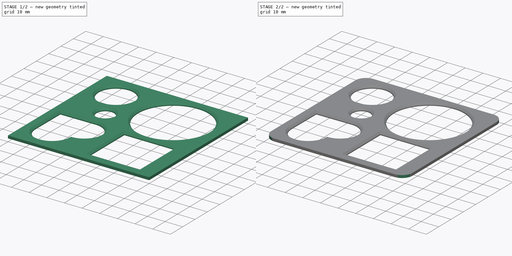
[diagram: build sequence overview — one tinted view per stage of 2, left to right]
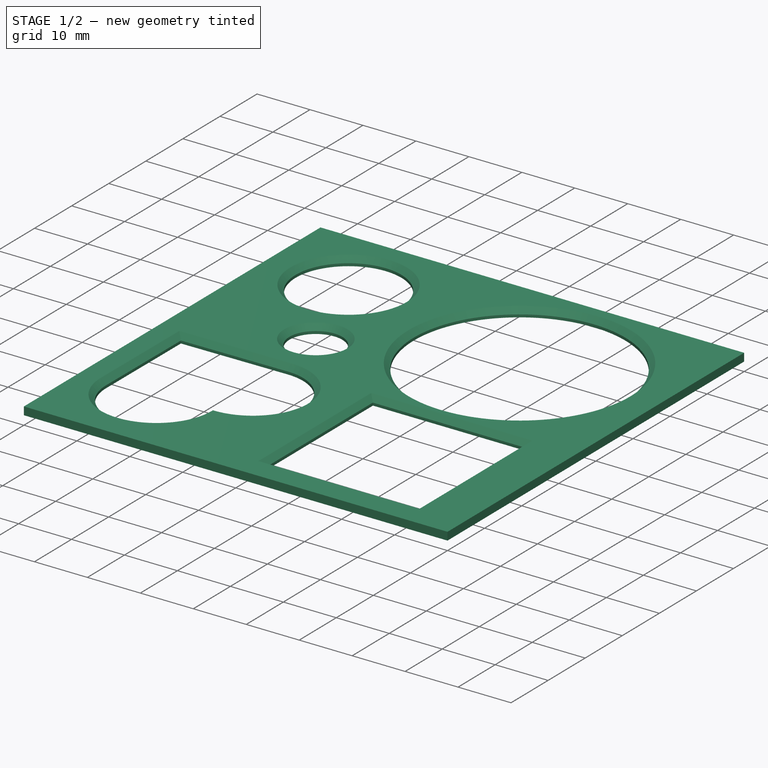
[diagram: stage 1 of 2 — iso view after this stage's code; geometry added in this stage tinted green]
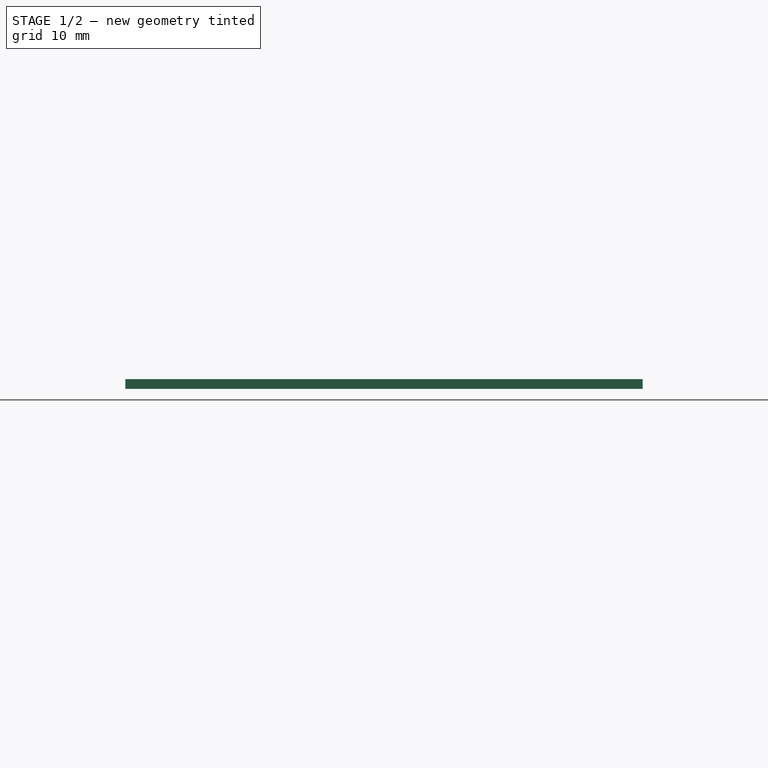
[diagram: stage 1 of 2 — front view after this stage's code; geometry added in this stage tinted green]
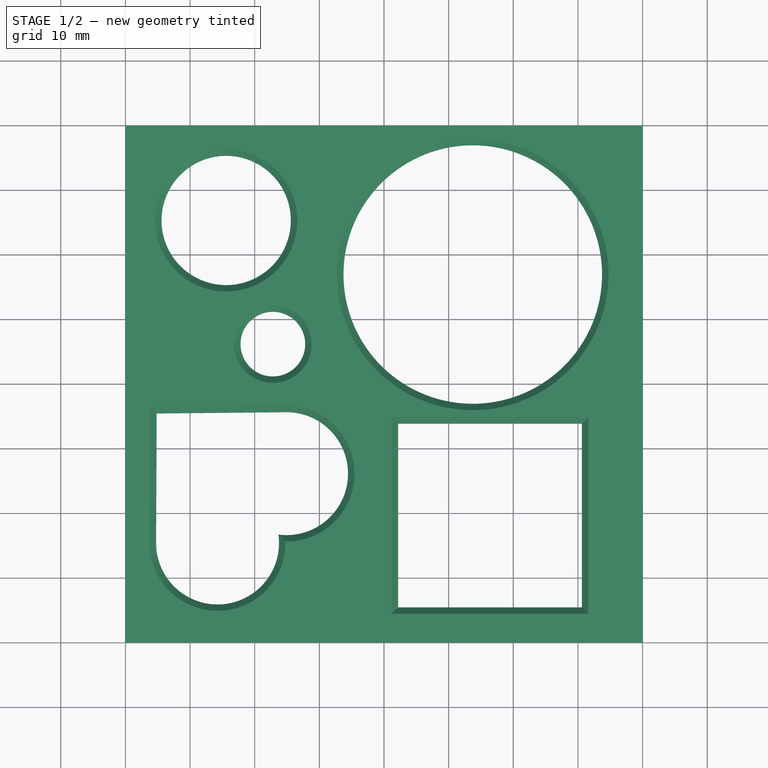
[diagram: stage 1 of 2 — top view after this stage's code; geometry added in this stage tinted green]
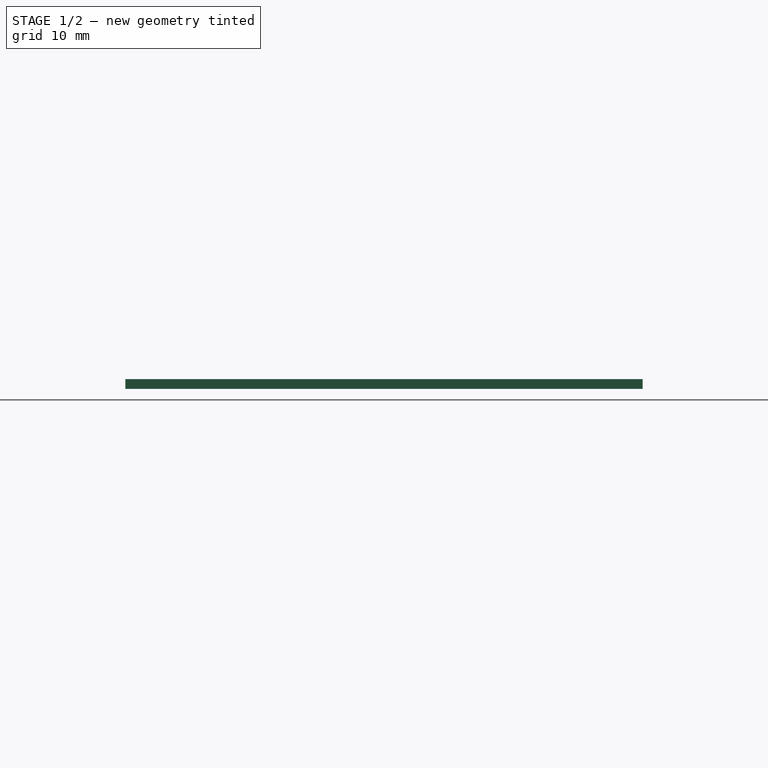
[diagram: stage 1 of 2 — right view after this stage's code; geometry added in this stage tinted green]
FCSTD DOCUMENT  (FreeCAD 0.18.3R)
Label: circles80mm
License: All rights reserved
LicenseURL: http://en.wikipedia.org/wiki/All_rights_reserved
objects: Sketcher::SketchObject×1, PartDesign::Pad×1, PartDesign::Chamfer×1, PartDesign::Fillet×1, PartDesign::Body×1
note: 6 computed .brp shape members not serialized (recipe doc carries the construction recipe); baked Part::Feature solids carry a one-line shape summary decoded from their .brp

FEATURE [Sketcher::SketchObject] Sketch
  MapMode = 5
  Support = -> [XY_Plane]
  sketch-geometry (15):
    g0: LineSegment StartX=0 StartY=0 StartZ=0 EndX=80 EndY=0 EndZ=0
    g1: LineSegment StartX=80 StartY=0 StartZ=0 EndX=80 EndY=-80 EndZ=0
    g2: LineSegment StartX=80 StartY=-80 StartZ=0 EndX=0 EndY=-80 EndZ=0
    g3: LineSegment StartX=0 StartY=-80 StartZ=0 EndX=0 EndY=0 EndZ=0
    g4: Circle CenterX=22.8085 CenterY=-33.8256 CenterZ=0 NormalX=0 NormalY=0 NormalZ=1 AngleXU=0 Radius=5
    g5: Circle CenterX=15.5871 CenterY=-14.6924 CenterZ=0 NormalX=0 NormalY=0 NormalZ=1 AngleXU=0 Radius=10
    g6: Circle CenterX=53.7316 CenterY=-23.0576 CenterZ=0 NormalX=0 NormalY=0 NormalZ=1 AngleXU=0 Radius=20
    g7: LineSegment StartX=4.83662 StartY=-44.5549 StartZ=0 EndX=24.8357 EndY=-44.3601 EndZ=0
    g8: LineSegment StartX=4.83662 StartY=-44.5549 StartZ=0 EndX=4.74559 EndY=-64.5547 EndZ=0
    g9: ArcOfCircle CenterX=14.2518 CenterY=-64.598 CenterZ=0 NormalX=0 NormalY=0 NormalZ=1 AngleXU=0 Radius=9.50626 StartAngle=3.13704 EndAngle=6.42141
    g10: ArcOfCircle CenterX=24.9283 CenterY=-53.8659 CenterZ=0 NormalX=0 NormalY=0 NormalZ=1 AngleXU=0 Radius=9.50626 StartAngle=4.57936 EndAngle=7.86372
    g11: LineSegment StartX=42.1911 StartY=-46.1368 StartZ=0 EndX=70.6173 EndY=-46.1368 EndZ=0
    g12: LineSegment StartX=70.6173 StartY=-46.1368 StartZ=0 EndX=70.6173 EndY=-74.5629 EndZ=0
    g13: LineSegment StartX=70.6173 StartY=-74.5629 StartZ=0 EndX=42.1911 EndY=-74.5629 EndZ=0
    g14: LineSegment StartX=42.1911 StartY=-74.5629 StartZ=0 EndX=42.1911 EndY=-46.1368 EndZ=0
  constraints (30):
    c: Coincident(g0,g1)
    c: Coincident(g1,g2)
    c: Coincident(g2,g3)
    c: Coincident(g3,g0)
    c: Horizontal(g0)
    c: Horizontal(g2)
    c: Vertical(g1)
    c: Vertical(g3)
    c: Coincident(g0,g-1)
    c: Equal(g0,g1)
    c: DistanceX(g0,g0) = 80
    c: Radius(g4) = 5
    c: Radius(g5) = 10
    c: Radius(g6) = 20
    c: Coincident(g8,g7)
    c: Tangent(g7,g10) = 1.5708
    c: Tangent(g8,g9) = -1.5708
    c: Equal(g7,g8)
    c: Equal(g10,g9)
    c: Coincident(g11,g12)
    c: Coincident(g12,g13)
    c: Coincident(g13,g14)
    c: Coincident(g14,g11)
    c: Horizontal(g11)
    c: Horizontal(g13)
    c: Vertical(g12)
    c: Vertical(g14)
    c: Equal(g11,g14)
    c: Distance(g8) = 20
    c: Coincident(g9,g10)
FEATURE [PartDesign::Pad] Pad
  Length = 1.5
  Length2 = 100
  Profile = -> Sketch
  Type = 0
FEATURE [PartDesign::Chamfer] Chamfer
  Base = -> Pad [Edge31,Edge39,Edge37,Edge34,Edge19,Edge27,Edge22,Edge25,Edge15,Edge45,Edge42]
  BaseFeature = -> Pad
  Size = 1
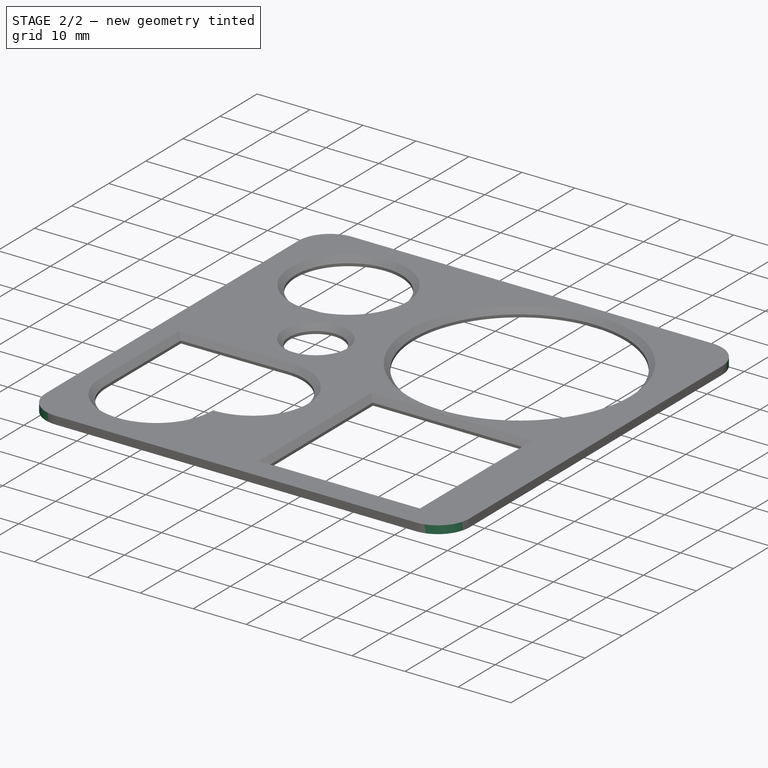
[diagram: stage 2 of 2 — iso view after this stage's code; geometry added in this stage tinted green]
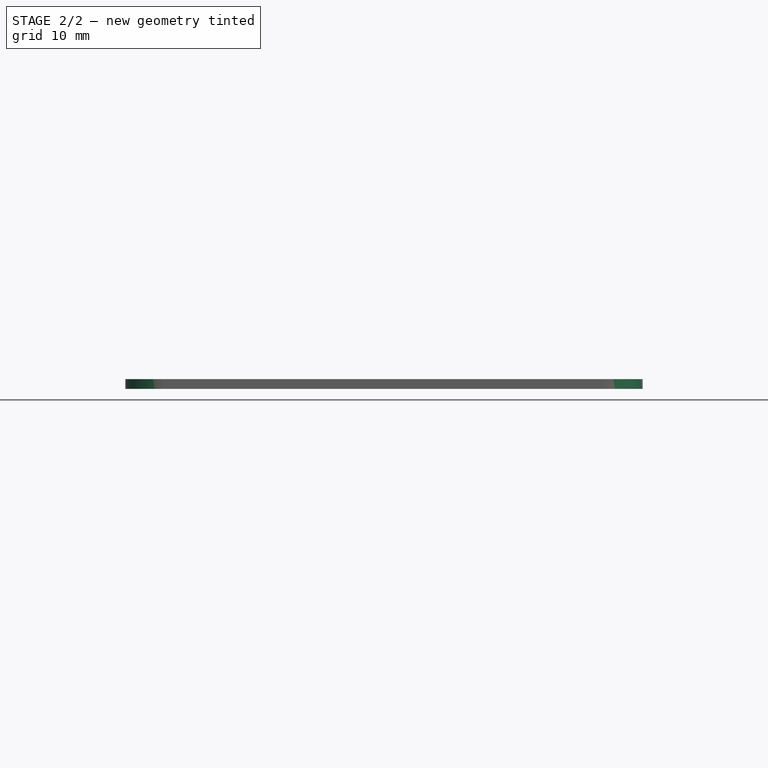
[diagram: stage 2 of 2 — front view after this stage's code; geometry added in this stage tinted green]
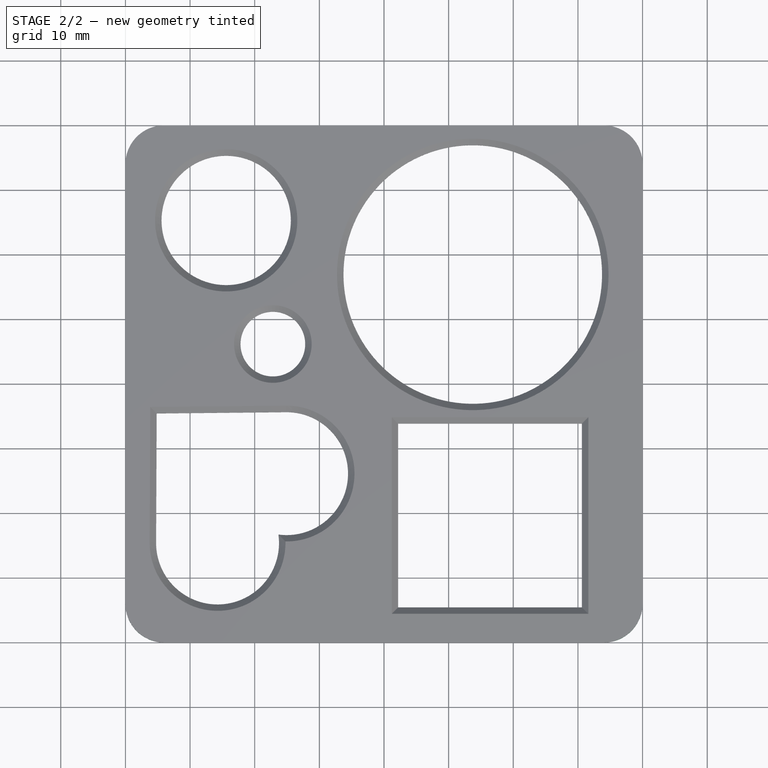
[diagram: stage 2 of 2 — top view after this stage's code; geometry added in this stage tinted green]
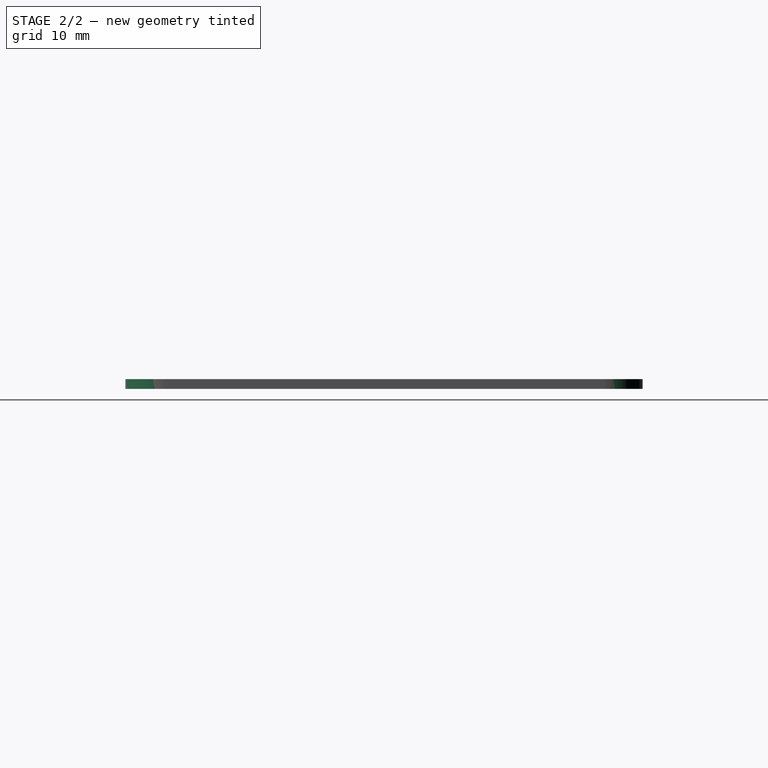
[diagram: stage 2 of 2 — right view after this stage's code; geometry added in this stage tinted green]
FEATURE [PartDesign::Fillet] Fillet
  Base = -> Chamfer [Edge35,Edge36,Edge37,Edge34]
  BaseFeature = -> Chamfer
  Radius = 6
FEATURE [PartDesign::Body] Body
  Group = -> [Sketch,Pad,Chamfer,Fillet]
  Origin = -> Origin
  Tip = -> Fillet
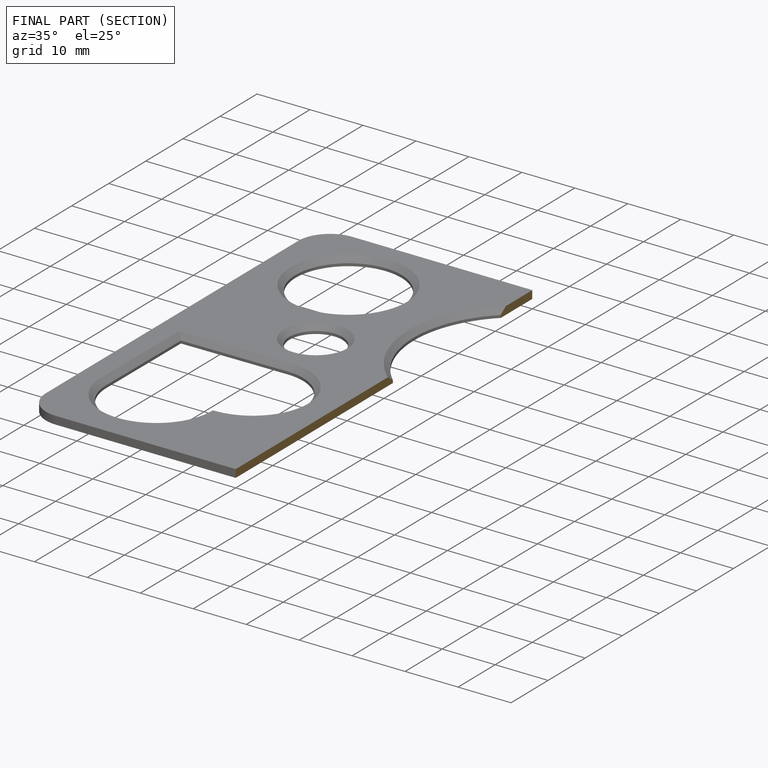
[diagram: finished part — half-section view (interior)]
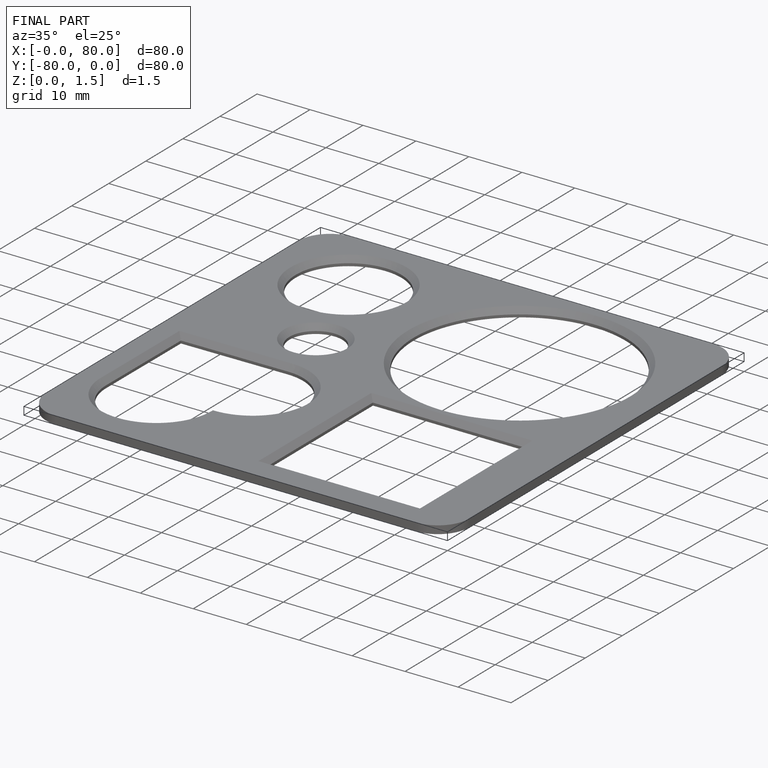
[diagram: finished part — iso view with bounding-box wireframe]
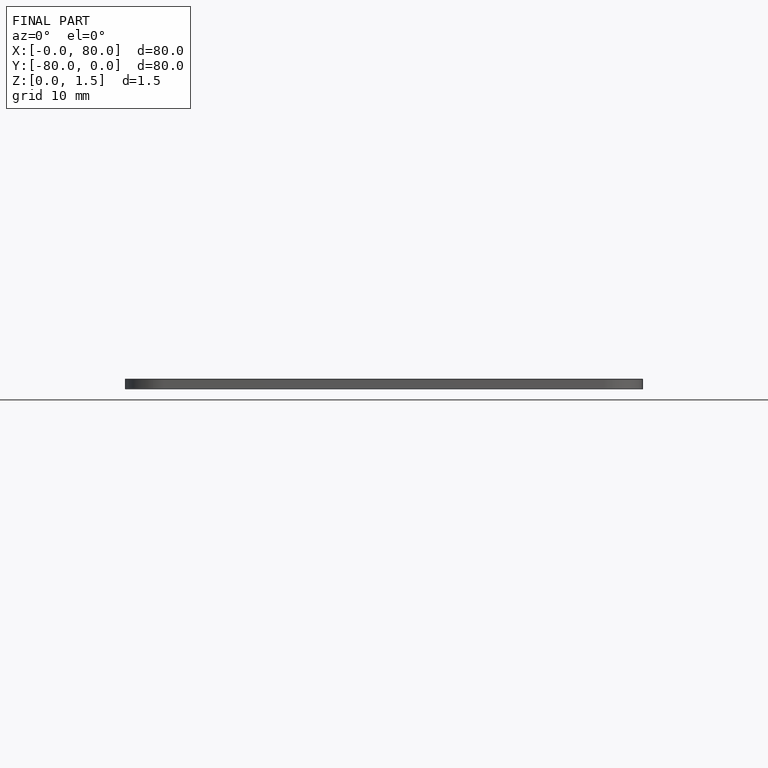
[diagram: finished part — front view with bounding-box wireframe]
